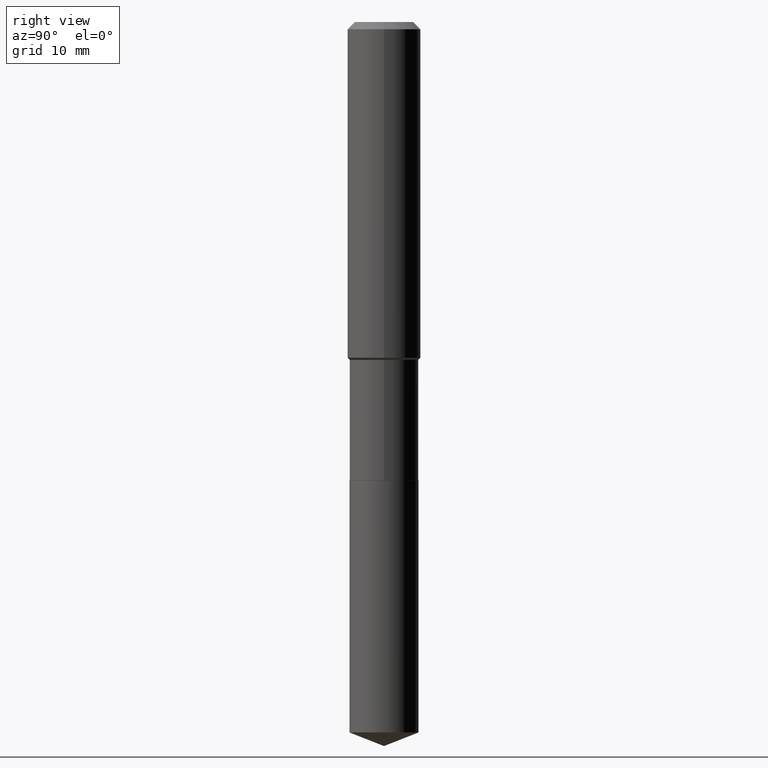
[diagram: clean part render]
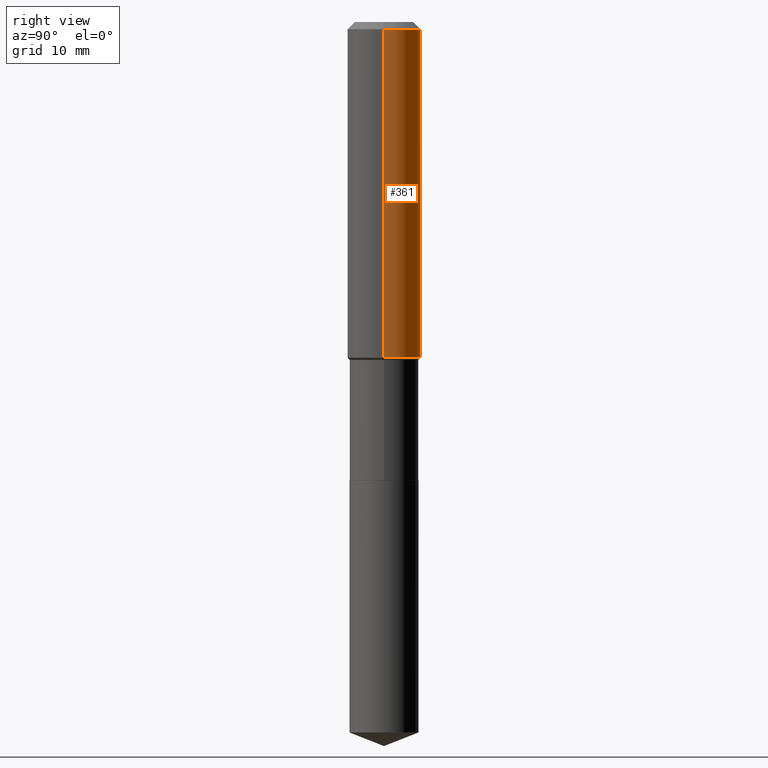
[diagram: same view with one face highlighted and labeled with its STEP entity id]
A machine part, right view. The second image highlights one B-rep face of the part: STEP entity #361.
In plain terms, the highlighted cylindrical surface (partial cylindrical patch) has radius 4.0005 mm, axis along (-0, 0, 1).
Its self-contained STEP definition (entity closure, byte-faithful):
#4 = DIRECTION ( 'NONE',  ( -2.445468806185136877E-29, 3.491481338843145188E-15, 1.000000000000000000 ) ) ;
#15 = DIRECTION ( 'NONE',  ( -2.445468806185136877E-29, 3.491481338843145188E-15, 1.000000000000000000 ) ) ;
#16 = VERTEX_POINT ( 'NONE', #189 ) ;
#39 = FACE_OUTER_BOUND ( 'NONE', #113, .T. ) ;
#45 = AXIS2_PLACEMENT_3D ( 'NONE', #472, #68, #478 ) ;
#57 = CARTESIAN_POINT ( 'NONE',  ( -0.1575000000000000011, -1.454029650871768556E-15, -0.03150000000000019451 ) ) ;
#64 = ORIENTED_EDGE ( 'NONE', *, *, #124, .F. ) ;
#68 = DIRECTION ( 'NONE',  ( -2.445468806185136597E-29, 3.491481338843145583E-15, 1.000000000000000000 ) ) ;
#72 = ORIENTED_EDGE ( 'NONE', *, *, #94, .T. ) ;
#81 = ORIENTED_EDGE ( 'NONE', *, *, #197, .T. ) ;
#88 = CIRCLE ( 'NONE', #45, 0.1575000000000000011 ) ;
#94 = EDGE_CURVE ( 'NONE', #156, #168, #135, .T. ) ;
#113 = EDGE_LOOP ( 'NONE', ( #72, #81, #64, #256 ) ) ;
#124 = EDGE_CURVE ( 'NONE', #16, #395, #88, .T. ) ;
#135 = CIRCLE ( 'NONE', #247, 0.1575000000000001676 ) ;
#150 = CARTESIAN_POINT ( 'NONE',  ( 0.1575000000000000844, -1.099816621735587677E-15, 7.679978421878603638E-30 ) ) ;
#156 = VERTEX_POINT ( 'NONE', #289 ) ;
#168 = VERTEX_POINT ( 'NONE', #340 ) ;
#175 = DIRECTION ( 'NONE',  ( -2.445468806185136597E-29, 3.491481338843145583E-15, 1.000000000000000000 ) ) ;
#183 = LINE ( 'NONE', #150, #475 ) ;
#189 = CARTESIAN_POINT ( 'NONE',  ( 0.1575000000000000011, -1.209798283909146741E-15, -0.03150000000000019451 ) ) ;
#197 = EDGE_CURVE ( 'NONE', #168, #395, #273, .T. ) ;
#218 = CARTESIAN_POINT ( 'NONE',  ( 3.527466479481750238E-29, -5.036287257214294044E-15, -1.442449999999999788 ) ) ;
#247 = AXIS2_PLACEMENT_3D ( 'NONE', #218, #175, #263 ) ;
#256 = ORIENTED_EDGE ( 'NONE', *, *, #278, .F. ) ;
#259 = VECTOR ( 'NONE', #15, 39.37007874015748143 ) ;
#263 = DIRECTION ( 'NONE',  ( 1.000000000000000000, -6.982962677686267499E-15, 0.000000000000000000 ) ) ;
#273 = LINE ( 'NONE', #274, #259 ) ;
#274 = CARTESIAN_POINT ( 'NONE',  ( -0.1575000000000000844, 1.119104808822158392E-15, -7.747322767151481189E-30 ) ) ;
#278 = EDGE_CURVE ( 'NONE', #156, #16, #183, .T. ) ;
#289 = CARTESIAN_POINT ( 'NONE',  ( 0.1575000000000001676, -6.136103878949882313E-15, -1.442449999999999788 ) ) ;
#300 = CYLINDRICAL_SURFACE ( 'NONE', #302, 0.1575000000000000844 ) ;
#302 = AXIS2_PLACEMENT_3D ( 'NONE', #333, #377, #450 ) ;
#333 = CARTESIAN_POINT ( 'NONE',  ( 0.000000000000000000, 0.000000000000000000, 0.000000000000000000 ) ) ;
#340 = CARTESIAN_POINT ( 'NONE',  ( -0.1575000000000001676, -3.917182448392135652E-15, -1.442449999999999788 ) ) ;
#361 = ADVANCED_FACE ( 'NONE', ( #39 ), #300, .T. ) ;
#377 = DIRECTION ( 'NONE',  ( -2.445468806185136597E-29, 3.491481338843145583E-15, 1.000000000000000000 ) ) ;
#395 = VERTEX_POINT ( 'NONE', #57 ) ;
#450 = DIRECTION ( 'NONE',  ( 1.000000000000000000, -6.982962677686267499E-15, 4.876176775795936353E-29 ) ) ;
#472 = CARTESIAN_POINT ( 'NONE',  ( 7.703226739483228723E-31, -1.099816621735597661E-16, -0.03150000000000019451 ) ) ;
#475 = VECTOR ( 'NONE', #4, 39.37007874015748143 ) ;
#478 = DIRECTION ( 'NONE',  ( 1.000000000000000000, -6.982962677686265922E-15, 0.000000000000000000 ) ) ;